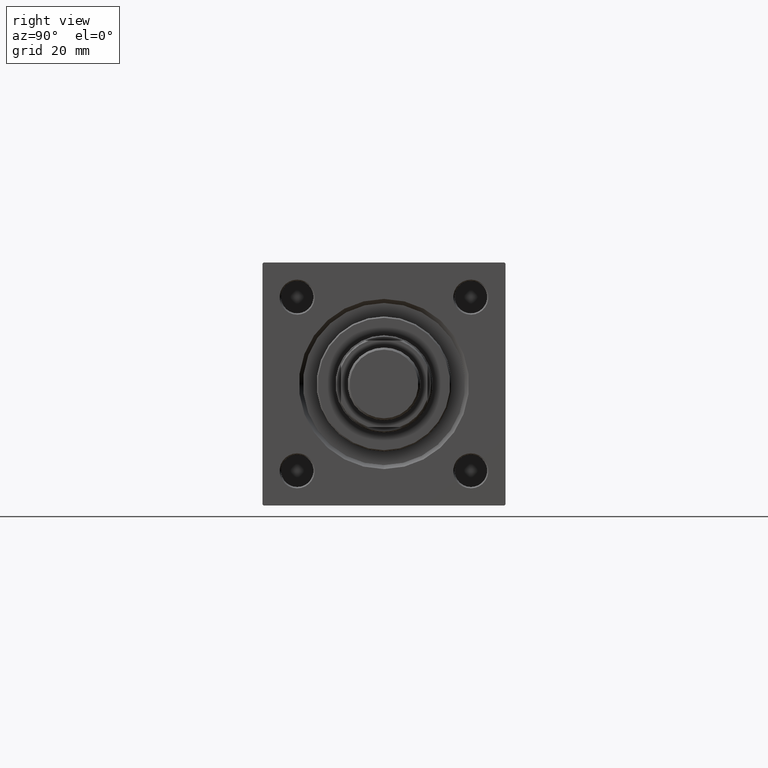
[diagram: clean part render]
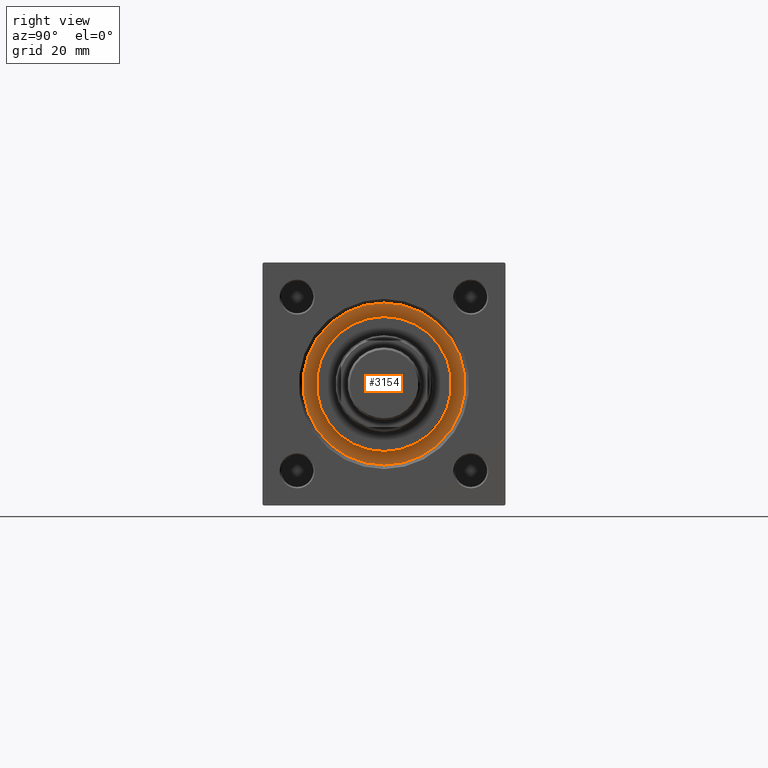
[diagram: same view with one face highlighted and labeled with its STEP entity id]
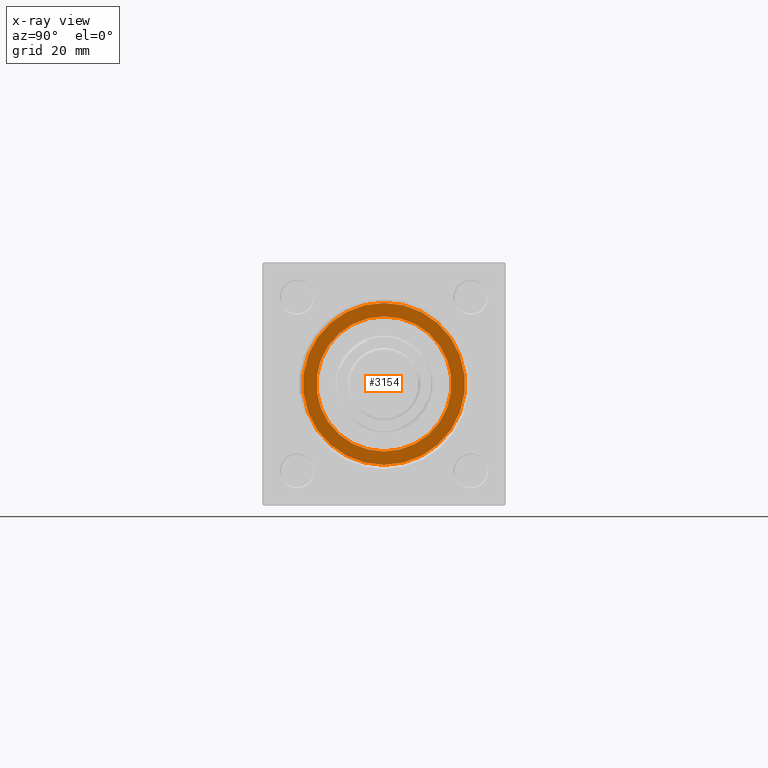
[diagram: x-ray of the same camera — body ghosted, the highlighted face saturated]
A machine part, right view. The second image highlights one B-rep face of the part: STEP entity #3154.
The next image is the same camera in x-ray: the body ghosted, the highlighted face saturated — about 0% of this face is hidden behind the body in this view.
In plain terms, the highlighted planar face has unit normal (1, 0, 0).
Its self-contained STEP definition (entity closure, byte-faithful):
#1275 = EDGE_CURVE ( 'NONE', #13087, #32819, #20563, .T. ) ;
#3131 = ORIENTED_EDGE ( 'NONE', *, *, #40023, .T. ) ;
#3154 = ADVANCED_FACE ( 'NONE', ( #15262, #18355 ), #22186, .T. ) ;
#5394 = EDGE_LOOP ( 'NONE', ( #3131, #42656 ) ) ;
#5787 = DIRECTION ( 'NONE',  ( 0.000000000000000000, 0.000000000000000000, 1.000000000000000000 ) ) ;
#6796 = DIRECTION ( 'NONE',  ( 1.000000000000000000, 0.000000000000000000, 0.000000000000000000 ) ) ;
#8515 = DIRECTION ( 'NONE',  ( 1.000000000000000000, 0.000000000000000000, 0.000000000000000000 ) ) ;
#11363 = AXIS2_PLACEMENT_3D ( 'NONE', #16201, #40294, #8515 ) ;
#12197 = ORIENTED_EDGE ( 'NONE', *, *, #48599, .F. ) ;
#13087 = VERTEX_POINT ( 'NONE', #33736 ) ;
#14692 = DIRECTION ( 'NONE',  ( 0.000000000000000000, 0.000000000000000000, 1.000000000000000000 ) ) ;
#15203 = CARTESIAN_POINT ( 'NONE',  ( 0.000000000000000000, 0.000000000000000000, 28.69999999999999929 ) ) ;
#15262 = FACE_BOUND ( 'NONE', #49127, .T. ) ;
#15670 = CARTESIAN_POINT ( 'NONE',  ( 0.000000000000000000, 0.000000000000000000, 28.69999999999999929 ) ) ;
#16201 = CARTESIAN_POINT ( 'NONE',  ( 0.000000000000000000, 0.000000000000000000, 28.69999999999999929 ) ) ;
#17482 = AXIS2_PLACEMENT_3D ( 'NONE', #15203, #14692, #33957 ) ;
#18223 = VERTEX_POINT ( 'NONE', #46516 ) ;
#18355 = FACE_OUTER_BOUND ( 'NONE', #5394, .T. ) ;
#18943 = AXIS2_PLACEMENT_3D ( 'NONE', #15670, #39284, #38769 ) ;
#20563 = CIRCLE ( 'NONE', #22157, 25.00000000000000000 ) ;
#22157 = AXIS2_PLACEMENT_3D ( 'NONE', #22423, #5787, #6796 ) ;
#22186 = PLANE ( 'NONE',  #40314 ) ;
#22208 = EDGE_CURVE ( 'NONE', #18223, #33078, #46162, .T. ) ;
#22423 = CARTESIAN_POINT ( 'NONE',  ( 0.000000000000000000, 0.000000000000000000, 28.69999999999999929 ) ) ;
#22447 = DIRECTION ( 'NONE',  ( 0.000000000000000000, 0.000000000000000000, 1.000000000000000000 ) ) ;
#24152 = CARTESIAN_POINT ( 'NONE',  ( -30.00000000000000000, 0.000000000000000000, 28.69999999999999929 ) ) ;
#26554 = DIRECTION ( 'NONE',  ( 1.000000000000000000, 0.000000000000000000, -0.000000000000000000 ) ) ;
#32653 = CARTESIAN_POINT ( 'NONE',  ( -25.00000000000000000, 0.000000000000000000, 28.69999999999999929 ) ) ;
#32819 = VERTEX_POINT ( 'NONE', #32653 ) ;
#33078 = VERTEX_POINT ( 'NONE', #24152 ) ;
#33736 = CARTESIAN_POINT ( 'NONE',  ( 25.00000000000000000, 3.061616997868383043E-15, 28.69999999999999929 ) ) ;
#33957 = DIRECTION ( 'NONE',  ( 1.000000000000000000, 0.000000000000000000, 0.000000000000000000 ) ) ;
#37580 = CIRCLE ( 'NONE', #11363, 30.00000000000000000 ) ;
#38114 = CARTESIAN_POINT ( 'NONE',  ( 0.000000000000000000, 0.000000000000000000, 28.69999999999999929 ) ) ;
#38769 = DIRECTION ( 'NONE',  ( 1.000000000000000000, 0.000000000000000000, 0.000000000000000000 ) ) ;
#39284 = DIRECTION ( 'NONE',  ( 0.000000000000000000, 0.000000000000000000, 1.000000000000000000 ) ) ;
#40023 = EDGE_CURVE ( 'NONE', #33078, #18223, #37580, .T. ) ;
#40294 = DIRECTION ( 'NONE',  ( 0.000000000000000000, 0.000000000000000000, 1.000000000000000000 ) ) ;
#40314 = AXIS2_PLACEMENT_3D ( 'NONE', #38114, #22447, #26554 ) ;
#41069 = CIRCLE ( 'NONE', #18943, 25.00000000000000000 ) ;
#41443 = ORIENTED_EDGE ( 'NONE', *, *, #1275, .F. ) ;
#42656 = ORIENTED_EDGE ( 'NONE', *, *, #22208, .T. ) ;
#46162 = CIRCLE ( 'NONE', #17482, 30.00000000000000000 ) ;
#46516 = CARTESIAN_POINT ( 'NONE',  ( 30.00000000000000000, 3.673940397442059178E-15, 28.69999999999999929 ) ) ;
#48599 = EDGE_CURVE ( 'NONE', #32819, #13087, #41069, .T. ) ;
#49127 = EDGE_LOOP ( 'NONE', ( #12197, #41443 ) ) ;